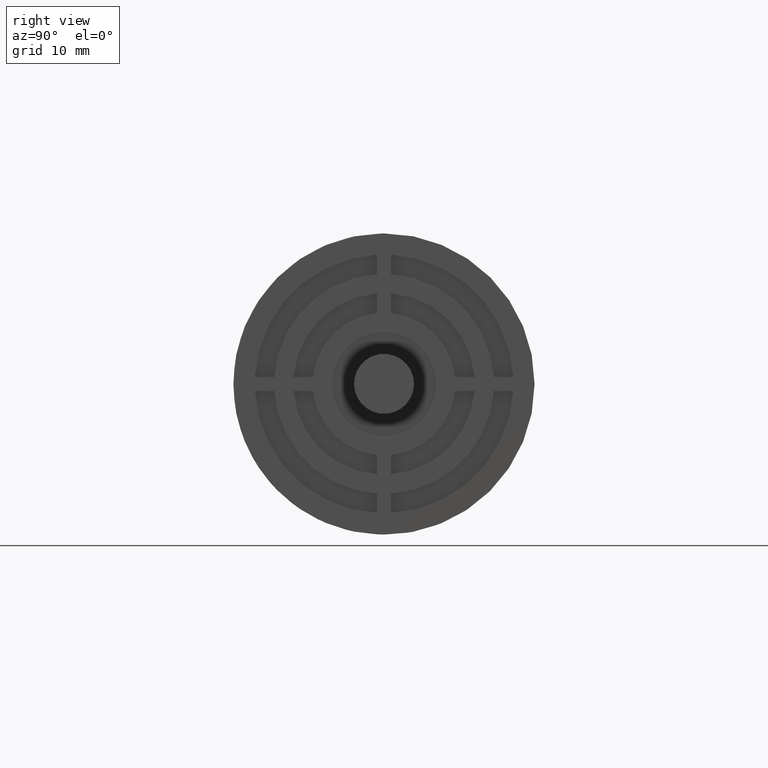
[diagram: clean part render]
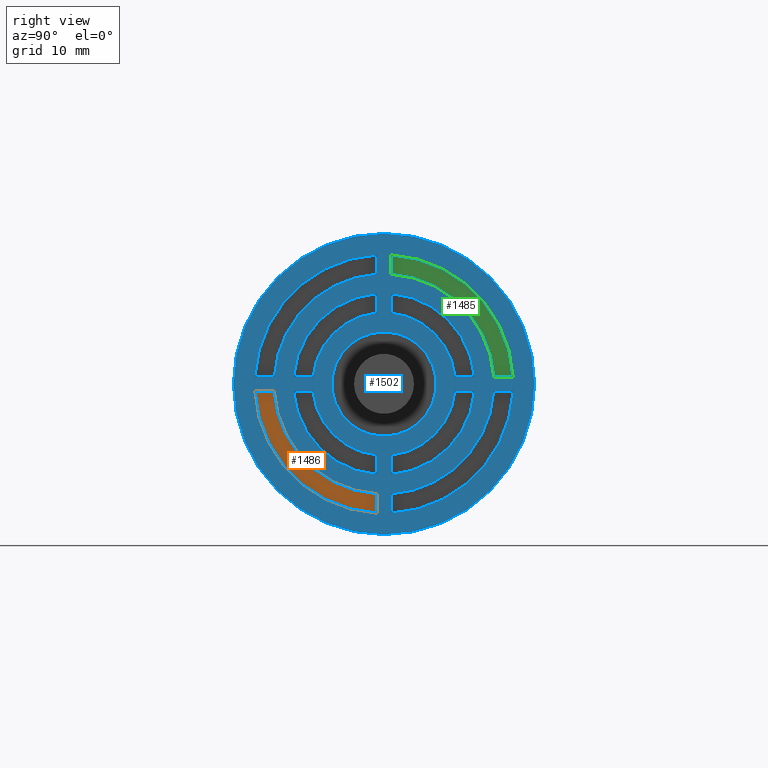
[diagram: same view with three faces highlighted in distinct colors, each labeled with its STEP entity id]
A machine part, right view with three faces highlighted in distinct colors.
Their STEP definitions:

[orange] entity #1486 — the highlighted planar face has unit normal (1, 0, 0).
#25=LINE('',#2250,#153);
#69=LINE('',#2376,#197);
#153=VECTOR('',#1766,2.50425287029469);
#197=VECTOR('',#1880,2.50425287029469);
#325=PLANE('',#1604);
#420=FACE_OUTER_BOUND('',#519,.T.);
#519=EDGE_LOOP('',(#1137,#1138,#1139,#1140));
#627=CIRCLE('',#1587,16.75);
#638=CIRCLE('',#1605,14.25);
#709=VERTEX_POINT('',#2246);
#711=VERTEX_POINT('',#2249);
#752=VERTEX_POINT('',#2347);
#758=VERTEX_POINT('',#2375);
#853=EDGE_CURVE('',#711,#709,#25,.T.);
#899=EDGE_CURVE('',#752,#709,#627,.T.);
#913=EDGE_CURVE('',#752,#758,#69,.T.);
#914=EDGE_CURVE('',#711,#758,#638,.T.);
#1137=ORIENTED_EDGE('',*,*,#853,.T.);
#1138=ORIENTED_EDGE('',*,*,#899,.F.);
#1139=ORIENTED_EDGE('',*,*,#913,.T.);
#1140=ORIENTED_EDGE('',*,*,#914,.F.);
#1486=ADVANCED_FACE('',(#420),#325,.T.);
#1587=AXIS2_PLACEMENT_3D('',#2349,#1841,#1842);
#1604=AXIS2_PLACEMENT_3D('',#2374,#1878,#1879);
#1605=AXIS2_PLACEMENT_3D('',#2377,#1881,#1882);
#1766=DIRECTION('',(0.,-1.,1.83697019872103E-16));
#1841=DIRECTION('center_axis',(-1.,0.,0.));
#1842=DIRECTION('ref_axis',(0.,0.,1.));
#1878=DIRECTION('center_axis',(1.,0.,0.));
#1879=DIRECTION('ref_axis',(0.,0.,-1.));
#1880=DIRECTION('',(0.,0.,1.));
#1881=DIRECTION('center_axis',(1.,0.,0.));
#1882=DIRECTION('ref_axis',(0.,0.,1.));
#2246=CARTESIAN_POINT('',(16.5,-16.7258034186702,-0.899999999999997));
#2249=CARTESIAN_POINT('',(16.5,-14.2215505483755,-0.899999999999998));
#2250=CARTESIAN_POINT('',(16.5,-4.29775665078024,-0.899999999999999));
#2347=CARTESIAN_POINT('',(16.5,-0.9,-16.7258034186702));
#2349=CARTESIAN_POINT('Origin',(16.5,0.,0.));
#2374=CARTESIAN_POINT('Origin',(16.5,0.,1.05469990397315E-15));
#2375=CARTESIAN_POINT('',(16.5,-0.9,-14.2215505483755));
#2376=CARTESIAN_POINT('',(16.5,-0.9,-8.66841145404845));
#2377=CARTESIAN_POINT('Origin',(16.5,0.,0.));

[blue] entity #1502 — the highlighted planar face has unit normal (1, 0, 0).
#19=LINE('',#2235,#147);
#21=LINE('',#2241,#149);
#27=LINE('',#2253,#155);
#29=LINE('',#2259,#157);
#35=LINE('',#2271,#163);
#37=LINE('',#2277,#165);
#43=LINE('',#2289,#171);
#45=LINE('',#2295,#173);
#51=LINE('',#2307,#179);
#53=LINE('',#2313,#181);
#59=LINE('',#2325,#187);
#61=LINE('',#2331,#189);
#76=LINE('',#2413,#204);
#77=LINE('',#2415,#205);
#78=LINE('',#2417,#206);
#79=LINE('',#2419,#207);
#147=VECTOR('',#1756,2.50936911065275);
#149=VECTOR('',#1760,2.50936911065275);
#155=VECTOR('',#1768,2.50425287029469);
#157=VECTOR('',#1772,2.50425287029469);
#163=VECTOR('',#1780,2.50936911065275);
#165=VECTOR('',#1784,2.50936911065275);
#171=VECTOR('',#1792,2.50425287029469);
#173=VECTOR('',#1796,2.50425287029469);
#179=VECTOR('',#1804,2.50936911065275);
#181=VECTOR('',#1808,2.50936911065275);
#187=VECTOR('',#1816,2.50425287029469);
#189=VECTOR('',#1820,2.50425287029469);
#204=VECTOR('',#1935,2.50425287029469);
#205=VECTOR('',#1938,2.50936911065275);
#206=VECTOR('',#1941,2.50425287029469);
#207=VECTOR('',#1944,2.50936911065275);
#334=PLANE('',#1632);
#369=FACE_BOUND('',#536,.T.);
#370=FACE_BOUND('',#537,.T.);
#371=FACE_BOUND('',#538,.T.);
#372=FACE_BOUND('',#539,.T.);
#373=FACE_BOUND('',#540,.T.);
#374=FACE_BOUND('',#541,.T.);
#375=FACE_BOUND('',#542,.T.);
#376=FACE_BOUND('',#543,.T.);
#377=FACE_BOUND('',#544,.T.);
#436=FACE_OUTER_BOUND('',#535,.T.);
#535=EDGE_LOOP('',(#1201));
#536=EDGE_LOOP('',(#1202,#1203,#1204,#1205));
#537=EDGE_LOOP('',(#1206,#1207,#1208,#1209));
#538=EDGE_LOOP('',(#1210,#1211,#1212,#1213));
#539=EDGE_LOOP('',(#1214,#1215,#1216,#1217));
#540=EDGE_LOOP('',(#1218,#1219,#1220,#1221));
#541=EDGE_LOOP('',(#1222,#1223,#1224,#1225));
#542=EDGE_LOOP('',(#1226,#1227,#1228,#1229));
#543=EDGE_LOOP('',(#1230,#1231,#1232,#1233));
#544=EDGE_LOOP('',(#1234));
#621=CIRCLE('',#1566,19.5);
#623=CIRCLE('',#1581,16.75);
#625=CIRCLE('',#1584,16.75);
#626=CIRCLE('',#1586,16.75);
#629=CIRCLE('',#1590,16.75);
#631=CIRCLE('',#1593,9.25);
#632=CIRCLE('',#1595,9.25);
#634=CIRCLE('',#1598,9.25);
#643=CIRCLE('',#1615,14.25);
#644=CIRCLE('',#1617,14.25);
#645=CIRCLE('',#1619,14.25);
#646=CIRCLE('',#1621,14.25);
#647=CIRCLE('',#1623,11.75);
#648=CIRCLE('',#1625,11.75);
#649=CIRCLE('',#1627,11.75);
#650=CIRCLE('',#1633,11.75);
#651=CIRCLE('',#1634,9.25);
#652=CIRCLE('',#1635,6.75);
#700=VERTEX_POINT('',#2225);
#702=VERTEX_POINT('',#2229);
#704=VERTEX_POINT('',#2233);
#705=VERTEX_POINT('',#2237);
#707=VERTEX_POINT('',#2240);
#710=VERTEX_POINT('',#2247);
#712=VERTEX_POINT('',#2251);
#713=VERTEX_POINT('',#2255);
#715=VERTEX_POINT('',#2258);
#718=VERTEX_POINT('',#2265);
#720=VERTEX_POINT('',#2269);
#721=VERTEX_POINT('',#2273);
#723=VERTEX_POINT('',#2276);
#726=VERTEX_POINT('',#2283);
#728=VERTEX_POINT('',#2287);
#729=VERTEX_POINT('',#2291);
#731=VERTEX_POINT('',#2294);
#734=VERTEX_POINT('',#2301);
#736=VERTEX_POINT('',#2305);
#737=VERTEX_POINT('',#2309);
#739=VERTEX_POINT('',#2312);
#742=VERTEX_POINT('',#2319);
#744=VERTEX_POINT('',#2323);
#745=VERTEX_POINT('',#2327);
#747=VERTEX_POINT('',#2330);
#750=VERTEX_POINT('',#2338);
#751=VERTEX_POINT('',#2345);
#754=VERTEX_POINT('',#2356);
#755=VERTEX_POINT('',#2360);
#761=VERTEX_POINT('',#2391);
#762=VERTEX_POINT('',#2397);
#763=VERTEX_POINT('',#2403);
#764=VERTEX_POINT('',#2407);
#765=VERTEX_POINT('',#2423);
#843=EDGE_CURVE('',#700,#700,#621,.T.);
#847=EDGE_CURVE('',#702,#704,#19,.T.);
#849=EDGE_CURVE('',#707,#705,#21,.T.);
#855=EDGE_CURVE('',#710,#712,#27,.T.);
#857=EDGE_CURVE('',#715,#713,#29,.T.);
#863=EDGE_CURVE('',#718,#720,#35,.T.);
#865=EDGE_CURVE('',#723,#721,#37,.T.);
#871=EDGE_CURVE('',#726,#728,#43,.T.);
#873=EDGE_CURVE('',#731,#729,#45,.T.);
#879=EDGE_CURVE('',#734,#736,#51,.T.);
#881=EDGE_CURVE('',#739,#737,#53,.T.);
#887=EDGE_CURVE('',#742,#744,#59,.T.);
#889=EDGE_CURVE('',#747,#745,#61,.T.);
#894=EDGE_CURVE('',#745,#750,#623,.T.);
#896=EDGE_CURVE('',#729,#742,#625,.T.);
#897=EDGE_CURVE('',#751,#710,#626,.T.);
#901=EDGE_CURVE('',#713,#726,#629,.T.);
#904=EDGE_CURVE('',#705,#754,#631,.T.);
#905=EDGE_CURVE('',#755,#734,#632,.T.);
#908=EDGE_CURVE('',#737,#718,#634,.T.);
#921=EDGE_CURVE('',#761,#747,#643,.T.);
#923=EDGE_CURVE('',#744,#731,#644,.T.);
#925=EDGE_CURVE('',#712,#762,#645,.T.);
#926=EDGE_CURVE('',#728,#715,#646,.T.);
#927=EDGE_CURVE('',#763,#707,#647,.T.);
#930=EDGE_CURVE('',#736,#764,#648,.T.);
#931=EDGE_CURVE('',#720,#739,#649,.T.);
#932=EDGE_CURVE('',#762,#751,#76,.T.);
#933=EDGE_CURVE('',#754,#763,#77,.T.);
#934=EDGE_CURVE('',#750,#761,#78,.T.);
#935=EDGE_CURVE('',#764,#755,#79,.T.);
#936=EDGE_CURVE('',#704,#723,#650,.T.);
#937=EDGE_CURVE('',#721,#702,#651,.T.);
#938=EDGE_CURVE('',#765,#765,#652,.T.);
#1201=ORIENTED_EDGE('',*,*,#843,.T.);
#1202=ORIENTED_EDGE('',*,*,#901,.T.);
#1203=ORIENTED_EDGE('',*,*,#871,.T.);
#1204=ORIENTED_EDGE('',*,*,#926,.T.);
#1205=ORIENTED_EDGE('',*,*,#857,.T.);
#1206=ORIENTED_EDGE('',*,*,#904,.T.);
#1207=ORIENTED_EDGE('',*,*,#933,.T.);
#1208=ORIENTED_EDGE('',*,*,#927,.T.);
#1209=ORIENTED_EDGE('',*,*,#849,.T.);
#1210=ORIENTED_EDGE('',*,*,#896,.T.);
#1211=ORIENTED_EDGE('',*,*,#887,.T.);
#1212=ORIENTED_EDGE('',*,*,#923,.T.);
#1213=ORIENTED_EDGE('',*,*,#873,.T.);
#1214=ORIENTED_EDGE('',*,*,#847,.T.);
#1215=ORIENTED_EDGE('',*,*,#936,.T.);
#1216=ORIENTED_EDGE('',*,*,#865,.T.);
#1217=ORIENTED_EDGE('',*,*,#937,.T.);
#1218=ORIENTED_EDGE('',*,*,#894,.T.);
#1219=ORIENTED_EDGE('',*,*,#934,.T.);
#1220=ORIENTED_EDGE('',*,*,#921,.T.);
#1221=ORIENTED_EDGE('',*,*,#889,.T.);
#1222=ORIENTED_EDGE('',*,*,#863,.T.);
#1223=ORIENTED_EDGE('',*,*,#931,.T.);
#1224=ORIENTED_EDGE('',*,*,#881,.T.);
#1225=ORIENTED_EDGE('',*,*,#908,.T.);
#1226=ORIENTED_EDGE('',*,*,#855,.T.);
#1227=ORIENTED_EDGE('',*,*,#925,.T.);
#1228=ORIENTED_EDGE('',*,*,#932,.T.);
#1229=ORIENTED_EDGE('',*,*,#897,.T.);
#1230=ORIENTED_EDGE('',*,*,#879,.T.);
#1231=ORIENTED_EDGE('',*,*,#930,.T.);
#1232=ORIENTED_EDGE('',*,*,#935,.T.);
#1233=ORIENTED_EDGE('',*,*,#905,.T.);
#1234=ORIENTED_EDGE('',*,*,#938,.T.);
#1502=ADVANCED_FACE('',(#436,#369,#370,#371,#372,#373,#374,#375,#376,#377),
#334,.T.);
#1566=AXIS2_PLACEMENT_3D('',#2226,#1749,#1750);
#1581=AXIS2_PLACEMENT_3D('',#2340,#1828,#1829);
#1584=AXIS2_PLACEMENT_3D('',#2343,#1834,#1835);
#1586=AXIS2_PLACEMENT_3D('',#2346,#1838,#1839);
#1590=AXIS2_PLACEMENT_3D('',#2352,#1847,#1848);
#1593=AXIS2_PLACEMENT_3D('',#2358,#1854,#1855);
#1595=AXIS2_PLACEMENT_3D('',#2361,#1858,#1859);
#1598=AXIS2_PLACEMENT_3D('',#2366,#1865,#1866);
#1615=AXIS2_PLACEMENT_3D('',#2392,#1903,#1904);
#1617=AXIS2_PLACEMENT_3D('',#2395,#1908,#1909);
#1619=AXIS2_PLACEMENT_3D('',#2399,#1913,#1914);
#1621=AXIS2_PLACEMENT_3D('',#2401,#1917,#1918);
#1623=AXIS2_PLACEMENT_3D('',#2404,#1921,#1922);
#1625=AXIS2_PLACEMENT_3D('',#2409,#1927,#1928);
#1627=AXIS2_PLACEMENT_3D('',#2411,#1931,#1932);
#1632=AXIS2_PLACEMENT_3D('',#2420,#1945,#1946);
#1633=AXIS2_PLACEMENT_3D('',#2421,#1947,#1948);
#1634=AXIS2_PLACEMENT_3D('',#2422,#1949,#1950);
#1635=AXIS2_PLACEMENT_3D('',#2424,#1951,#1952);
#1749=DIRECTION('center_axis',(1.,0.,0.));
#1750=DIRECTION('ref_axis',(0.,0.,-1.));
#1756=DIRECTION('',(0.,-1.,1.83697019872103E-16));
#1760=DIRECTION('',(0.,1.,-1.83697019872103E-16));
#1768=DIRECTION('',(0.,1.,-1.83697019872103E-16));
#1772=DIRECTION('',(0.,-1.,1.83697019872103E-16));
#1780=DIRECTION('',(0.,1.22464679914735E-16,1.));
#1784=DIRECTION('',(0.,-1.22464679914735E-16,-1.));
#1792=DIRECTION('',(0.,-1.22464679914735E-16,-1.));
#1796=DIRECTION('',(0.,1.22464679914735E-16,1.));
#1804=DIRECTION('',(0.,1.,-6.12323399573677E-17));
#1808=DIRECTION('',(0.,-1.,6.12323399573677E-17));
#1816=DIRECTION('',(0.,-1.,6.12323399573677E-17));
#1820=DIRECTION('',(0.,1.,-6.12323399573677E-17));
#1828=DIRECTION('center_axis',(-1.,0.,0.));
#1829=DIRECTION('ref_axis',(0.,0.,1.));
#1834=DIRECTION('center_axis',(-1.,0.,0.));
#1835=DIRECTION('ref_axis',(0.,0.,1.));
#1838=DIRECTION('center_axis',(-1.,0.,0.));
#1839=DIRECTION('ref_axis',(0.,0.,1.));
#1847=DIRECTION('center_axis',(-1.,0.,0.));
#1848=DIRECTION('ref_axis',(0.,0.,1.));
#1854=DIRECTION('center_axis',(1.,0.,0.));
#1855=DIRECTION('ref_axis',(0.,0.,1.));
#1858=DIRECTION('center_axis',(1.,0.,0.));
#1859=DIRECTION('ref_axis',(0.,0.,1.));
#1865=DIRECTION('center_axis',(1.,0.,0.));
#1866=DIRECTION('ref_axis',(0.,0.,1.));
#1903=DIRECTION('center_axis',(1.,0.,0.));
#1904=DIRECTION('ref_axis',(0.,0.,1.));
#1908=DIRECTION('center_axis',(1.,0.,0.));
#1909=DIRECTION('ref_axis',(0.,0.,1.));
#1913=DIRECTION('center_axis',(1.,0.,0.));
#1914=DIRECTION('ref_axis',(0.,0.,1.));
#1917=DIRECTION('center_axis',(1.,0.,0.));
#1918=DIRECTION('ref_axis',(0.,0.,1.));
#1921=DIRECTION('center_axis',(-1.,0.,0.));
#1922=DIRECTION('ref_axis',(0.,0.,1.));
#1927=DIRECTION('center_axis',(-1.,0.,0.));
#1928=DIRECTION('ref_axis',(0.,0.,1.));
#1931=DIRECTION('center_axis',(-1.,0.,0.));
#1932=DIRECTION('ref_axis',(0.,0.,1.));
#1935=DIRECTION('',(0.,0.,-1.));
#1938=DIRECTION('',(0.,0.,-1.));
#1941=DIRECTION('',(0.,0.,1.));
#1944=DIRECTION('',(0.,0.,1.));
#1945=DIRECTION('center_axis',(1.,0.,0.));
#1946=DIRECTION('ref_axis',(0.,0.,-1.));
#1947=DIRECTION('center_axis',(-1.,0.,0.));
#1948=DIRECTION('ref_axis',(0.,0.,1.));
#1949=DIRECTION('center_axis',(1.,0.,0.));
#1950=DIRECTION('ref_axis',(0.,0.,1.));
#1951=DIRECTION('center_axis',(-1.,0.,0.));
#1952=DIRECTION('ref_axis',(0.,0.,1.));
#2225=CARTESIAN_POINT('',(17.5,19.5,0.));
#2226=CARTESIAN_POINT('Origin',(17.5,0.,0.));
#2229=CARTESIAN_POINT('',(17.5,-9.20611210012131,0.900000000000002));
#2233=CARTESIAN_POINT('',(17.5,-11.7154812107741,0.900000000000003));
#2235=CARTESIAN_POINT('',(17.5,-8.59551330156048,0.900000000000002));
#2237=CARTESIAN_POINT('',(17.5,-9.20611210012131,-0.899999999999999));
#2240=CARTESIAN_POINT('',(17.5,-11.7154812107741,-0.899999999999998));
#2241=CARTESIAN_POINT('',(17.5,-17.3368229080969,-0.899999999999997));
#2247=CARTESIAN_POINT('',(17.5,-16.7258034186702,-0.899999999999997));
#2251=CARTESIAN_POINT('',(17.5,-14.2215505483755,-0.899999999999998));
#2253=CARTESIAN_POINT('',(17.5,-17.3368229080969,-0.899999999999997));
#2255=CARTESIAN_POINT('',(17.5,-16.7258034186702,0.900000000000003));
#2258=CARTESIAN_POINT('',(17.5,-14.2215505483755,0.900000000000003));
#2259=CARTESIAN_POINT('',(17.5,-8.59551330156048,0.900000000000002));
#2265=CARTESIAN_POINT('',(17.5,0.900000000000002,9.20611210012131));
#2269=CARTESIAN_POINT('',(17.5,0.900000000000002,11.7154812107741));
#2271=CARTESIAN_POINT('',(17.5,0.900000000000001,8.59551330156048));
#2273=CARTESIAN_POINT('',(17.5,-0.899999999999999,9.20611210012131));
#2276=CARTESIAN_POINT('',(17.5,-0.899999999999999,11.7154812107741));
#2277=CARTESIAN_POINT('',(17.5,-0.899999999999998,17.3368229080969));
#2283=CARTESIAN_POINT('',(17.5,-0.899999999999998,16.7258034186702));
#2287=CARTESIAN_POINT('',(17.5,-0.899999999999999,14.2215505483755));
#2289=CARTESIAN_POINT('',(17.5,-0.899999999999998,17.3368229080969));
#2291=CARTESIAN_POINT('',(17.5,0.900000000000003,16.7258034186702));
#2294=CARTESIAN_POINT('',(17.5,0.900000000000002,14.2215505483755));
#2295=CARTESIAN_POINT('',(17.5,0.900000000000001,8.59551330156048));
#2301=CARTESIAN_POINT('',(17.5,9.20611210012131,-0.900000000000001));
#2305=CARTESIAN_POINT('',(17.5,11.7154812107741,-0.900000000000001));
#2307=CARTESIAN_POINT('',(17.5,8.59551330156048,-0.900000000000001));
#2309=CARTESIAN_POINT('',(17.5,9.20611210012131,0.9));
#2312=CARTESIAN_POINT('',(17.5,11.7154812107741,0.9));
#2313=CARTESIAN_POINT('',(17.5,17.3368229080969,0.899999999999999));
#2319=CARTESIAN_POINT('',(17.5,16.7258034186702,0.899999999999999));
#2323=CARTESIAN_POINT('',(17.5,14.2215505483755,0.9));
#2325=CARTESIAN_POINT('',(17.5,17.3368229080969,0.899999999999999));
#2327=CARTESIAN_POINT('',(17.5,16.7258034186702,-0.900000000000001));
#2330=CARTESIAN_POINT('',(17.5,14.2215505483755,-0.900000000000001));
#2331=CARTESIAN_POINT('',(17.5,8.59551330156048,-0.900000000000001));
#2338=CARTESIAN_POINT('',(17.5,0.9,-16.7258034186702));
#2340=CARTESIAN_POINT('Origin',(17.5,0.,0.));
#2343=CARTESIAN_POINT('Origin',(17.5,0.,0.));
#2345=CARTESIAN_POINT('',(17.5,-0.9,-16.7258034186702));
#2346=CARTESIAN_POINT('Origin',(17.5,0.,0.));
#2352=CARTESIAN_POINT('Origin',(17.5,0.,0.));
#2356=CARTESIAN_POINT('',(17.5,-0.9,-9.20611210012131));
#2358=CARTESIAN_POINT('Origin',(17.5,0.,0.));
#2360=CARTESIAN_POINT('',(17.5,0.9,-9.20611210012131));
#2361=CARTESIAN_POINT('Origin',(17.5,0.,0.));
#2366=CARTESIAN_POINT('Origin',(17.5,0.,0.));
#2391=CARTESIAN_POINT('',(17.5,0.9,-14.2215505483755));
#2392=CARTESIAN_POINT('Origin',(17.5,0.,0.));
#2395=CARTESIAN_POINT('Origin',(17.5,0.,0.));
#2397=CARTESIAN_POINT('',(17.5,-0.9,-14.2215505483755));
#2399=CARTESIAN_POINT('Origin',(17.5,0.,0.));
#2401=CARTESIAN_POINT('Origin',(17.5,0.,0.));
#2403=CARTESIAN_POINT('',(17.5,-0.9,-11.7154812107741));
#2404=CARTESIAN_POINT('Origin',(17.5,0.,0.));
#2407=CARTESIAN_POINT('',(17.5,0.9,-11.7154812107741));
#2409=CARTESIAN_POINT('Origin',(17.5,0.,0.));
#2411=CARTESIAN_POINT('Origin',(17.5,0.,0.));
#2413=CARTESIAN_POINT('',(17.5,-0.9,-8.59551330156048));
#2415=CARTESIAN_POINT('',(17.5,-0.9,-8.59551330156048));
#2417=CARTESIAN_POINT('',(17.5,0.9,-17.3368229080969));
#2419=CARTESIAN_POINT('',(17.5,0.9,-17.3368229080969));
#2420=CARTESIAN_POINT('Origin',(17.5,6.4293956955236E-15,0.));
#2421=CARTESIAN_POINT('Origin',(17.5,0.,0.));
#2422=CARTESIAN_POINT('Origin',(17.5,0.,0.));
#2423=CARTESIAN_POINT('',(17.5,8.26636589424463E-16,-6.75));
#2424=CARTESIAN_POINT('Origin',(17.5,0.,0.));

[green] entity #1485 — the highlighted planar face has unit normal (1, 0, 0).
#47=LINE('',#2298,#175);
#57=LINE('',#2322,#185);
#175=VECTOR('',#1798,2.50425287029469);
#185=VECTOR('',#1814,2.50425287029469);
#324=PLANE('',#1602);
#419=FACE_OUTER_BOUND('',#518,.T.);
#518=EDGE_LOOP('',(#1133,#1134,#1135,#1136));
#624=CIRCLE('',#1583,16.75);
#637=CIRCLE('',#1603,14.25);
#730=VERTEX_POINT('',#2292);
#732=VERTEX_POINT('',#2296);
#741=VERTEX_POINT('',#2318);
#743=VERTEX_POINT('',#2321);
#875=EDGE_CURVE('',#730,#732,#47,.T.);
#885=EDGE_CURVE('',#743,#741,#57,.T.);
#895=EDGE_CURVE('',#730,#741,#624,.T.);
#912=EDGE_CURVE('',#743,#732,#637,.T.);
#1133=ORIENTED_EDGE('',*,*,#875,.T.);
#1134=ORIENTED_EDGE('',*,*,#912,.F.);
#1135=ORIENTED_EDGE('',*,*,#885,.T.);
#1136=ORIENTED_EDGE('',*,*,#895,.F.);
#1485=ADVANCED_FACE('',(#419),#324,.T.);
#1583=AXIS2_PLACEMENT_3D('',#2342,#1832,#1833);
#1602=AXIS2_PLACEMENT_3D('',#2372,#1874,#1875);
#1603=AXIS2_PLACEMENT_3D('',#2373,#1876,#1877);
#1798=DIRECTION('',(0.,-1.22464679914735E-16,-1.));
#1814=DIRECTION('',(0.,1.,-6.12323399573677E-17));
#1832=DIRECTION('center_axis',(-1.,0.,0.));
#1833=DIRECTION('ref_axis',(0.,0.,1.));
#1874=DIRECTION('center_axis',(1.,0.,0.));
#1875=DIRECTION('ref_axis',(0.,0.,-1.));
#1876=DIRECTION('center_axis',(1.,0.,0.));
#1877=DIRECTION('ref_axis',(0.,0.,1.));
#2292=CARTESIAN_POINT('',(16.5,0.900000000000002,16.7258034186702));
#2296=CARTESIAN_POINT('',(16.5,0.900000000000002,14.2215505483755));
#2298=CARTESIAN_POINT('',(16.5,0.900000000000002,8.66841145404845));
#2318=CARTESIAN_POINT('',(16.5,16.7258034186702,0.899999999999999));
#2321=CARTESIAN_POINT('',(16.5,14.2215505483755,0.9));
#2322=CARTESIAN_POINT('',(16.5,4.29775665078024,0.9));
#2342=CARTESIAN_POINT('Origin',(16.5,0.,0.));
#2372=CARTESIAN_POINT('Origin',(16.5,0.,1.05469990397315E-15));
#2373=CARTESIAN_POINT('Origin',(16.5,0.,0.));